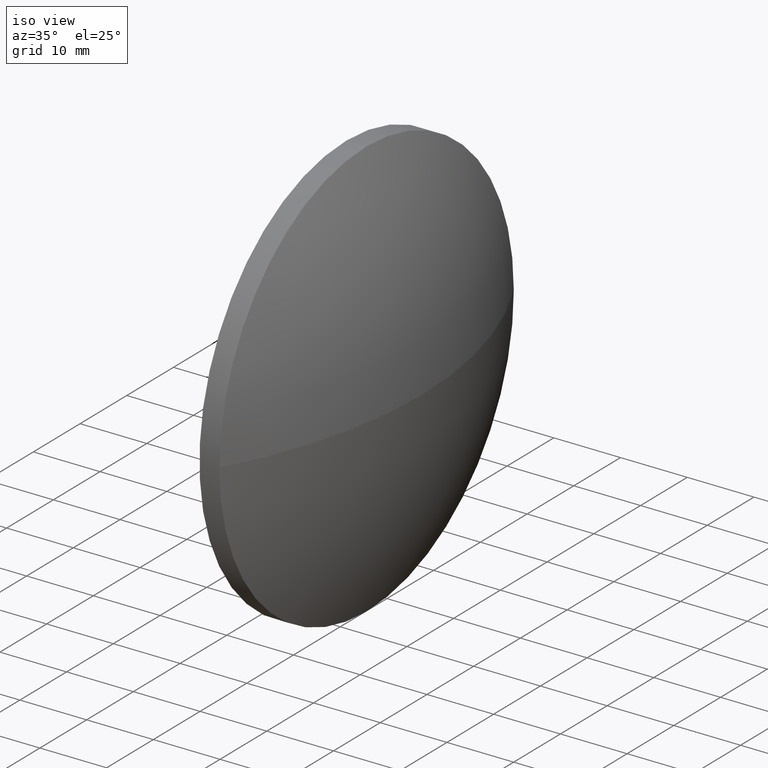
[diagram: clean part render]
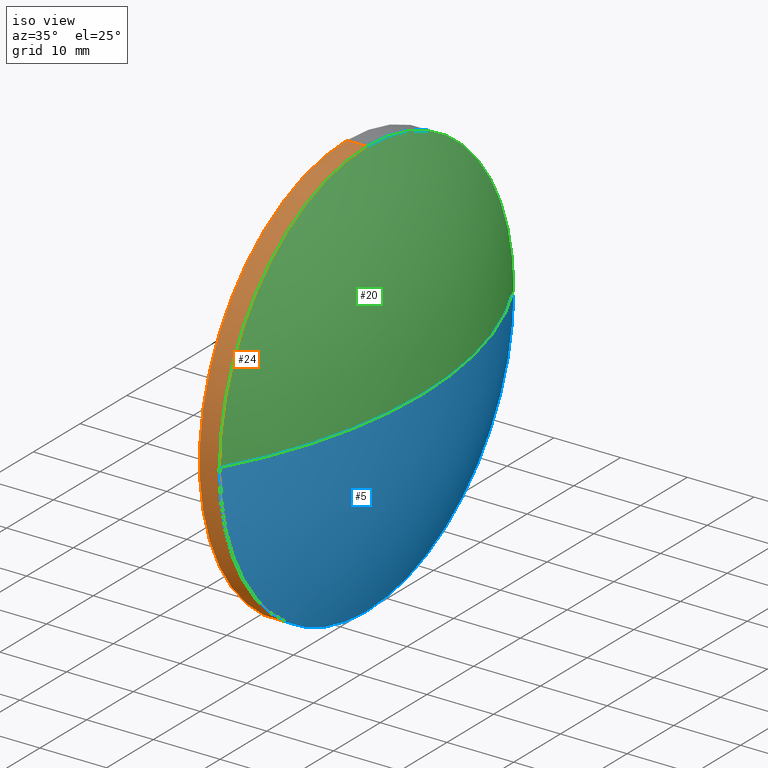
[diagram: same view with three faces highlighted in distinct colors, each labeled with its STEP entity id]
A machine part, iso view with three faces highlighted in distinct colors.
Their STEP definitions:

[orange] entity #24 — the highlighted cylindrical surface (partial cylindrical patch) has radius 31.5 mm, axis along (-1, -0, -0).
#2 = CARTESIAN_POINT ( 'NONE',  ( 451.7579245164399700, 33.14734230930400800, 0.0000000000000000000 ) ) ;
#7 = CYLINDRICAL_SURFACE ( 'NONE', #171, 31.50000000000000000 ) ;
#9 = DIRECTION ( 'NONE',  ( 0.0000000000000000000, 0.0000000000000000000, 1.000000000000000000 ) ) ;
#14 = EDGE_CURVE ( 'NONE', #81, #55, #76, .T. ) ;
#16 = DIRECTION ( 'NONE',  ( -1.000000000000000000, -0.0000000000000000000, -0.0000000000000000000 ) ) ;
#17 = DIRECTION ( 'NONE',  ( 0.0000000000000000000, 0.0000000000000000000, 1.000000000000000000 ) ) ;
#22 = EDGE_CURVE ( 'NONE', #50, #81, #70, .T. ) ;
#24 = ADVANCED_FACE ( 'NONE', ( #180 ), #7, .T. ) ;
#34 = AXIS2_PLACEMENT_3D ( 'NONE', #97, #51, #9 ) ;
#37 = CARTESIAN_POINT ( 'NONE',  ( 451.7579245164399700, 33.14734230930401500, -31.50000000000000000 ) ) ;
#44 = LINE ( 'NONE', #79, #160 ) ;
#48 = CARTESIAN_POINT ( 'NONE',  ( 451.7579245164399700, 1.647342309304022900, -3.857637417314160300E-015 ) ) ;
#49 = CARTESIAN_POINT ( 'NONE',  ( 448.7579245164399700, 33.14734230930401500, -31.50000000000000000 ) ) ;
#50 = VERTEX_POINT ( 'NONE', #48 ) ;
#51 = DIRECTION ( 'NONE',  ( -1.000000000000000000, -0.0000000000000000000, -0.0000000000000000000 ) ) ;
#55 = VERTEX_POINT ( 'NONE', #92 ) ;
#56 = EDGE_CURVE ( 'NONE', #182, #50, #137, .T. ) ;
#68 = AXIS2_PLACEMENT_3D ( 'NONE', #162, #173, #146 ) ;
#70 = CIRCLE ( 'NONE', #176, 31.50000000000000000 ) ;
#76 = LINE ( 'NONE', #161, #143 ) ;
#79 = CARTESIAN_POINT ( 'NONE',  ( 429.7189694546175900, 33.14734230930401500, -31.50000000000000000 ) ) ;
#81 = VERTEX_POINT ( 'NONE', #145 ) ;
#84 = DIRECTION ( 'NONE',  ( -1.000000000000000000, -0.0000000000000000000, -0.0000000000000000000 ) ) ;
#89 = VERTEX_POINT ( 'NONE', #49 ) ;
#92 = CARTESIAN_POINT ( 'NONE',  ( 448.7579245164399700, 33.14734230930400800, 31.50000000000000000 ) ) ;
#93 = CARTESIAN_POINT ( 'NONE',  ( 429.7189694546175900, 33.14734230930400800, 0.0000000000000000000 ) ) ;
#97 = CARTESIAN_POINT ( 'NONE',  ( 448.7579245164399700, 33.14734230930400800, 0.0000000000000000000 ) ) ;
#100 = ORIENTED_EDGE ( 'NONE', *, *, #56, .T. ) ;
#105 = DIRECTION ( 'NONE',  ( -1.000000000000000000, -0.0000000000000000000, -0.0000000000000000000 ) ) ;
#111 = ORIENTED_EDGE ( 'NONE', *, *, #22, .T. ) ;
#115 = EDGE_CURVE ( 'NONE', #182, #89, #44, .T. ) ;
#118 = CIRCLE ( 'NONE', #34, 31.50000000000000000 ) ;
#120 = DIRECTION ( 'NONE',  ( 0.0000000000000000000, 0.0000000000000000000, 1.000000000000000000 ) ) ;
#126 = EDGE_LOOP ( 'NONE', ( #156, #100, #111, #178, #163 ) ) ;
#137 = CIRCLE ( 'NONE', #68, 31.50000000000000000 ) ;
#143 = VECTOR ( 'NONE', #105, 1000.000000000000000 ) ;
#145 = CARTESIAN_POINT ( 'NONE',  ( 451.7579245164399700, 33.14734230930400800, 31.50000000000000000 ) ) ;
#146 = DIRECTION ( 'NONE',  ( 0.0000000000000000000, 0.0000000000000000000, 1.000000000000000000 ) ) ;
#154 = EDGE_CURVE ( 'NONE', #89, #55, #118, .T. ) ;
#156 = ORIENTED_EDGE ( 'NONE', *, *, #115, .F. ) ;
#160 = VECTOR ( 'NONE', #84, 1000.000000000000000 ) ;
#161 = CARTESIAN_POINT ( 'NONE',  ( 429.7189694546175900, 33.14734230930400800, 31.50000000000000000 ) ) ;
#162 = CARTESIAN_POINT ( 'NONE',  ( 451.7579245164399700, 33.14734230930400800, 0.0000000000000000000 ) ) ;
#163 = ORIENTED_EDGE ( 'NONE', *, *, #154, .F. ) ;
#171 = AXIS2_PLACEMENT_3D ( 'NONE', #93, #16, #17 ) ;
#173 = DIRECTION ( 'NONE',  ( -1.000000000000000000, -0.0000000000000000000, -0.0000000000000000000 ) ) ;
#174 = DIRECTION ( 'NONE',  ( -1.000000000000000000, -0.0000000000000000000, -0.0000000000000000000 ) ) ;
#176 = AXIS2_PLACEMENT_3D ( 'NONE', #2, #174, #120 ) ;
#178 = ORIENTED_EDGE ( 'NONE', *, *, #14, .T. ) ;
#180 = FACE_OUTER_BOUND ( 'NONE', #126, .T. ) ;
#182 = VERTEX_POINT ( 'NONE', #37 ) ;

[blue] entity #5 — the highlighted spherical surface has radius 64.5344 mm.
#1 = VERTEX_POINT ( 'NONE', #73 ) ;
#5 = ADVANCED_FACE ( 'NONE', ( #43 ), #113, .T. ) ;
#25 = CIRCLE ( 'NONE', #127, 31.50000000000000000 ) ;
#29 = ORIENTED_EDGE ( 'NONE', *, *, #109, .T. ) ;
#30 = DIRECTION ( 'NONE',  ( 0.0000000000000000000, 1.224646799147353200E-016, -1.000000000000000000 ) ) ;
#36 = ORIENTED_EDGE ( 'NONE', *, *, #56, .F. ) ;
#37 = CARTESIAN_POINT ( 'NONE',  ( 451.7579245164399700, 33.14734230930401500, -31.50000000000000000 ) ) ;
#41 = EDGE_LOOP ( 'NONE', ( #138, #29, #36, #87 ) ) ;
#42 = AXIS2_PLACEMENT_3D ( 'NONE', #52, #151, #149 ) ;
#43 = FACE_OUTER_BOUND ( 'NONE', #41, .T. ) ;
#47 = DIRECTION ( 'NONE',  ( 0.0000000000000000000, 1.000000000000000000, 0.0000000000000000000 ) ) ;
#48 = CARTESIAN_POINT ( 'NONE',  ( 451.7579245164399700, 1.647342309304022900, -3.857637417314160300E-015 ) ) ;
#50 = VERTEX_POINT ( 'NONE', #48 ) ;
#52 = CARTESIAN_POINT ( 'NONE',  ( 395.4335700706423600, 33.14734230930400800, 0.0000000000000000000 ) ) ;
#53 = CARTESIAN_POINT ( 'NONE',  ( 459.9679245164399500, 33.14734230930401500, 0.0000000000000000000 ) ) ;
#56 = EDGE_CURVE ( 'NONE', #182, #50, #137, .T. ) ;
#58 = CIRCLE ( 'NONE', #141, 64.53435444579764600 ) ;
#59 = DIRECTION ( 'NONE',  ( -1.000000000000000000, -0.0000000000000000000, -0.0000000000000000000 ) ) ;
#68 = AXIS2_PLACEMENT_3D ( 'NONE', #162, #173, #146 ) ;
#73 = CARTESIAN_POINT ( 'NONE',  ( 451.7579245164399700, 64.64734230930399400, 0.0000000000000000000 ) ) ;
#74 = CARTESIAN_POINT ( 'NONE',  ( 395.4335700706423600, 33.14734230930400800, 0.0000000000000000000 ) ) ;
#78 = DIRECTION ( 'NONE',  ( -0.0000000000000000000, 0.0000000000000000000, -1.000000000000000000 ) ) ;
#87 = ORIENTED_EDGE ( 'NONE', *, *, #102, .F. ) ;
#91 = CIRCLE ( 'NONE', #42, 64.53435444579763200 ) ;
#102 = EDGE_CURVE ( 'NONE', #1, #182, #25, .T. ) ;
#109 = EDGE_CURVE ( 'NONE', #184, #50, #58, .T. ) ;
#113 = SPHERICAL_SURFACE ( 'NONE', #139, 64.53435444579764600 ) ;
#116 = DIRECTION ( 'NONE',  ( 0.0000000000000000000, 0.0000000000000000000, 1.000000000000000000 ) ) ;
#119 = CARTESIAN_POINT ( 'NONE',  ( 395.4335700706423600, 33.14734230930400800, 0.0000000000000000000 ) ) ;
#127 = AXIS2_PLACEMENT_3D ( 'NONE', #147, #59, #116 ) ;
#134 = DIRECTION ( 'NONE',  ( 0.0000000000000000000, 1.000000000000000000, 1.224646799147353500E-016 ) ) ;
#137 = CIRCLE ( 'NONE', #68, 31.50000000000000000 ) ;
#138 = ORIENTED_EDGE ( 'NONE', *, *, #157, .F. ) ;
#139 = AXIS2_PLACEMENT_3D ( 'NONE', #74, #78, #47 ) ;
#141 = AXIS2_PLACEMENT_3D ( 'NONE', #119, #30, #134 ) ;
#146 = DIRECTION ( 'NONE',  ( 0.0000000000000000000, 0.0000000000000000000, 1.000000000000000000 ) ) ;
#147 = CARTESIAN_POINT ( 'NONE',  ( 451.7579245164399700, 33.14734230930400800, 0.0000000000000000000 ) ) ;
#149 = DIRECTION ( 'NONE',  ( 1.000000000000000000, 0.0000000000000000000, 0.0000000000000000000 ) ) ;
#151 = DIRECTION ( 'NONE',  ( -0.0000000000000000000, 0.0000000000000000000, 1.000000000000000000 ) ) ;
#157 = EDGE_CURVE ( 'NONE', #184, #1, #91, .T. ) ;
#162 = CARTESIAN_POINT ( 'NONE',  ( 451.7579245164399700, 33.14734230930400800, 0.0000000000000000000 ) ) ;
#173 = DIRECTION ( 'NONE',  ( -1.000000000000000000, -0.0000000000000000000, -0.0000000000000000000 ) ) ;
#182 = VERTEX_POINT ( 'NONE', #37 ) ;
#184 = VERTEX_POINT ( 'NONE', #53 ) ;

[green] entity #20 — the highlighted spherical surface has radius 64.5344 mm.
#1 = VERTEX_POINT ( 'NONE', #73 ) ;
#2 = CARTESIAN_POINT ( 'NONE',  ( 451.7579245164399700, 33.14734230930400800, 0.0000000000000000000 ) ) ;
#3 = ORIENTED_EDGE ( 'NONE', *, *, #109, .F. ) ;
#4 = CARTESIAN_POINT ( 'NONE',  ( 451.7579245164399700, 33.14734230930400800, 0.0000000000000000000 ) ) ;
#18 = DIRECTION ( 'NONE',  ( 0.0000000000000000000, 0.0000000000000000000, 1.000000000000000000 ) ) ;
#20 = ADVANCED_FACE ( 'NONE', ( #33 ), #45, .T. ) ;
#22 = EDGE_CURVE ( 'NONE', #50, #81, #70, .T. ) ;
#28 = EDGE_CURVE ( 'NONE', #81, #1, #69, .T. ) ;
#30 = DIRECTION ( 'NONE',  ( 0.0000000000000000000, 1.224646799147353200E-016, -1.000000000000000000 ) ) ;
#31 = DIRECTION ( 'NONE',  ( -0.0000000000000000000, 0.0000000000000000000, -1.000000000000000000 ) ) ;
#33 = FACE_OUTER_BOUND ( 'NONE', #67, .T. ) ;
#42 = AXIS2_PLACEMENT_3D ( 'NONE', #52, #151, #149 ) ;
#45 = SPHERICAL_SURFACE ( 'NONE', #112, 64.53435444579764600 ) ;
#46 = DIRECTION ( 'NONE',  ( -1.000000000000000000, -0.0000000000000000000, -0.0000000000000000000 ) ) ;
#48 = CARTESIAN_POINT ( 'NONE',  ( 451.7579245164399700, 1.647342309304022900, -3.857637417314160300E-015 ) ) ;
#50 = VERTEX_POINT ( 'NONE', #48 ) ;
#52 = CARTESIAN_POINT ( 'NONE',  ( 395.4335700706423600, 33.14734230930400800, 0.0000000000000000000 ) ) ;
#53 = CARTESIAN_POINT ( 'NONE',  ( 459.9679245164399500, 33.14734230930401500, 0.0000000000000000000 ) ) ;
#58 = CIRCLE ( 'NONE', #141, 64.53435444579764600 ) ;
#67 = EDGE_LOOP ( 'NONE', ( #3, #114, #122, #99 ) ) ;
#69 = CIRCLE ( 'NONE', #132, 31.50000000000000000 ) ;
#70 = CIRCLE ( 'NONE', #176, 31.50000000000000000 ) ;
#73 = CARTESIAN_POINT ( 'NONE',  ( 451.7579245164399700, 64.64734230930399400, 0.0000000000000000000 ) ) ;
#81 = VERTEX_POINT ( 'NONE', #145 ) ;
#91 = CIRCLE ( 'NONE', #42, 64.53435444579763200 ) ;
#99 = ORIENTED_EDGE ( 'NONE', *, *, #22, .F. ) ;
#109 = EDGE_CURVE ( 'NONE', #184, #50, #58, .T. ) ;
#112 = AXIS2_PLACEMENT_3D ( 'NONE', #133, #31, #117 ) ;
#114 = ORIENTED_EDGE ( 'NONE', *, *, #157, .T. ) ;
#117 = DIRECTION ( 'NONE',  ( 0.0000000000000000000, 1.000000000000000000, 0.0000000000000000000 ) ) ;
#119 = CARTESIAN_POINT ( 'NONE',  ( 395.4335700706423600, 33.14734230930400800, 0.0000000000000000000 ) ) ;
#120 = DIRECTION ( 'NONE',  ( 0.0000000000000000000, 0.0000000000000000000, 1.000000000000000000 ) ) ;
#122 = ORIENTED_EDGE ( 'NONE', *, *, #28, .F. ) ;
#132 = AXIS2_PLACEMENT_3D ( 'NONE', #4, #46, #18 ) ;
#133 = CARTESIAN_POINT ( 'NONE',  ( 395.4335700706423600, 33.14734230930400800, 0.0000000000000000000 ) ) ;
#134 = DIRECTION ( 'NONE',  ( 0.0000000000000000000, 1.000000000000000000, 1.224646799147353500E-016 ) ) ;
#141 = AXIS2_PLACEMENT_3D ( 'NONE', #119, #30, #134 ) ;
#145 = CARTESIAN_POINT ( 'NONE',  ( 451.7579245164399700, 33.14734230930400800, 31.50000000000000000 ) ) ;
#149 = DIRECTION ( 'NONE',  ( 1.000000000000000000, 0.0000000000000000000, 0.0000000000000000000 ) ) ;
#151 = DIRECTION ( 'NONE',  ( -0.0000000000000000000, 0.0000000000000000000, 1.000000000000000000 ) ) ;
#157 = EDGE_CURVE ( 'NONE', #184, #1, #91, .T. ) ;
#174 = DIRECTION ( 'NONE',  ( -1.000000000000000000, -0.0000000000000000000, -0.0000000000000000000 ) ) ;
#176 = AXIS2_PLACEMENT_3D ( 'NONE', #2, #174, #120 ) ;
#184 = VERTEX_POINT ( 'NONE', #53 ) ;